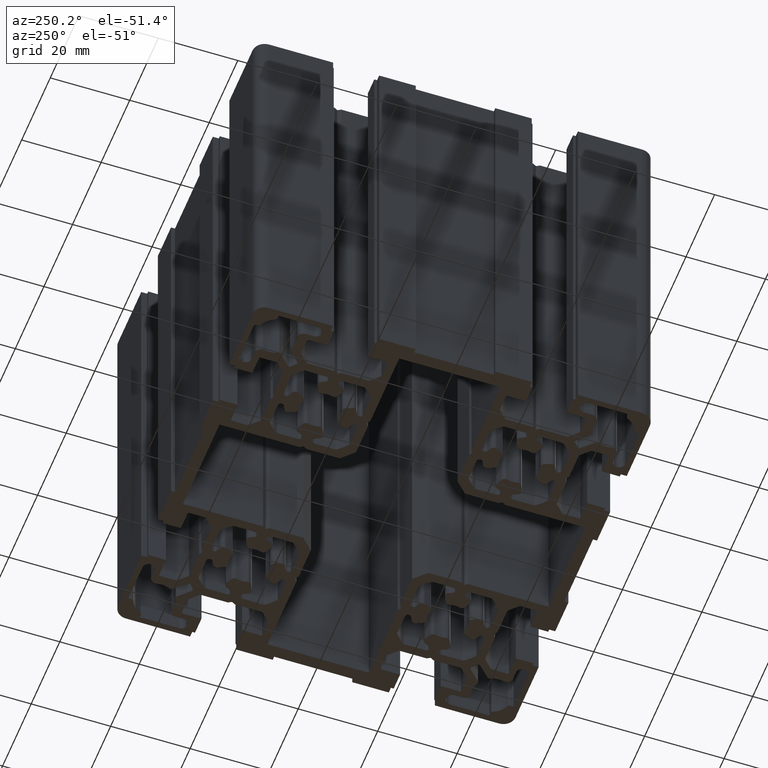
[diagram: clean part render]
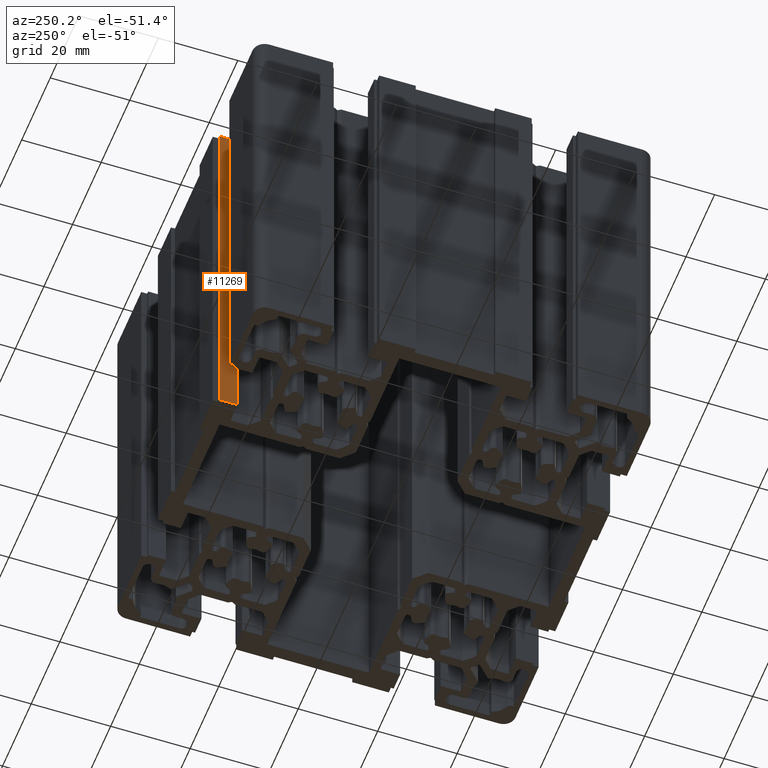
[diagram: same view with one face highlighted and labeled with its STEP entity id]
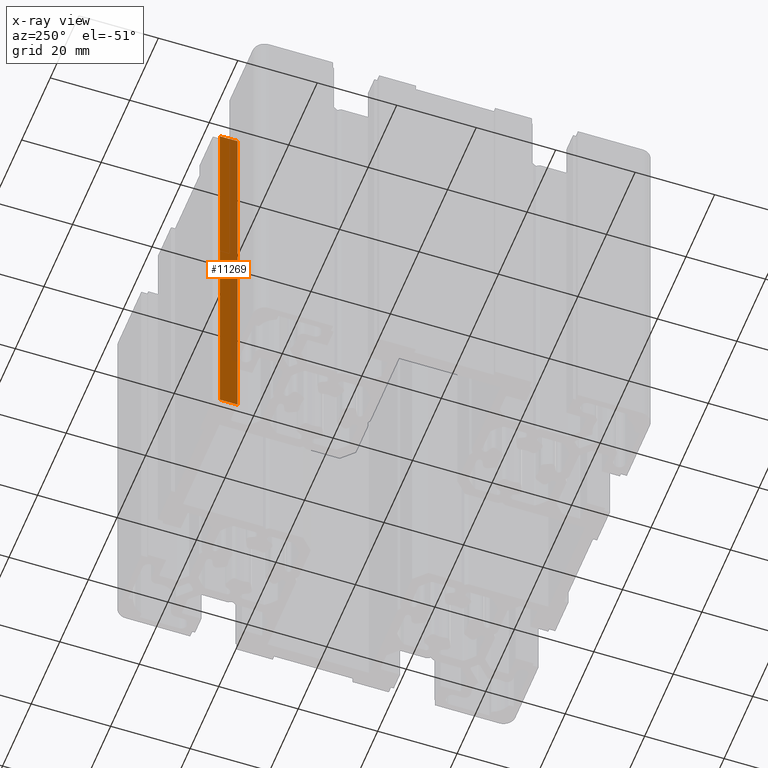
[diagram: x-ray of the same camera — body ghosted, the highlighted face saturated]
A machine part, auxiliary view. The second image highlights one B-rep face of the part: STEP entity #11269.
The next image is the same camera in x-ray: the body ghosted, the highlighted face saturated — about 35% of this face is hidden behind the body in this view.
In plain terms, the highlighted planar face has unit normal (1, -0, 0).
Its self-contained STEP definition (entity closure, byte-faithful):
#8843 = VERTEX_POINT ( 'NONE', #15187 ) ;
#8857 = EDGE_CURVE ( 'NONE', #8843, #8862, #14774, .T. ) ;
#8862 = VERTEX_POINT ( 'NONE', #15263 ) ;
#9218 = EDGE_CURVE ( 'NONE', #9223, #9226, #15914, .T. ) ;
#9223 = VERTEX_POINT ( 'NONE', #15910 ) ;
#9226 = VERTEX_POINT ( 'NONE', #15905 ) ;
#11146 = EDGE_LOOP ( 'NONE', ( #11344, #11346, #11352, #11349 ) ) ;
#11269 = ADVANCED_FACE ( 'NONE', ( #19138 ), #19119, .F. ) ;
#11344 = ORIENTED_EDGE ( 'NONE', *, *, #9218, .T. ) ;
#11346 = ORIENTED_EDGE ( 'NONE', *, *, #11348, .F. ) ;
#11348 = EDGE_CURVE ( 'NONE', #8862, #9226, #19261, .T. ) ;
#11349 = ORIENTED_EDGE ( 'NONE', *, *, #11364, .T. ) ;
#11352 = ORIENTED_EDGE ( 'NONE', *, *, #8857, .F. ) ;
#11364 = EDGE_CURVE ( 'NONE', #8843, #9223, #19305, .T. ) ;
#14765 = DIRECTION ( 'NONE',  ( -6.938893903907222100E-015, -1.000000000000000000, -0.0000000000000000000 ) ) ;
#14774 = LINE ( 'NONE', #14778, #14779 ) ;
#14778 = CARTESIAN_POINT ( 'NONE',  ( -19.89999999999998100, 44.00000000000019200, 100.0000000000000000 ) ) ;
#14779 = VECTOR ( 'NONE', #14765, 1000.000000000000000 ) ;
#15187 = CARTESIAN_POINT ( 'NONE',  ( -19.89999999999994900, 48.50000000000019900, 100.0000000000000000 ) ) ;
#15263 = CARTESIAN_POINT ( 'NONE',  ( -19.89999999999998100, 44.00000000000019200, 100.0000000000000000 ) ) ;
#15905 = CARTESIAN_POINT ( 'NONE',  ( -19.89999999999998100, 44.00000000000019200, 0.0000000000000000000 ) ) ;
#15910 = CARTESIAN_POINT ( 'NONE',  ( -19.89999999999994900, 48.50000000000019900, 0.0000000000000000000 ) ) ;
#15911 = DIRECTION ( 'NONE',  ( -6.938893903907222100E-015, -1.000000000000000000, -0.0000000000000000000 ) ) ;
#15912 = VECTOR ( 'NONE', #15911, 1000.000000000000000 ) ;
#15913 = CARTESIAN_POINT ( 'NONE',  ( -19.89999999999998100, 44.00000000000019200, 0.0000000000000000000 ) ) ;
#15914 = LINE ( 'NONE', #15913, #15912 ) ;
#19113 = CARTESIAN_POINT ( 'NONE',  ( -19.89999999999998100, 44.00000000000019200, 100.0000000000000000 ) ) ;
#19117 = AXIS2_PLACEMENT_3D ( 'NONE', #19113, #19158, #19157 ) ;
#19119 = PLANE ( 'NONE',  #19117 ) ;
#19138 = FACE_OUTER_BOUND ( 'NONE', #11146, .T. ) ;
#19157 = DIRECTION ( 'NONE',  ( 6.938893903907222100E-015, 1.000000000000000000, 0.0000000000000000000 ) ) ;
#19158 = DIRECTION ( 'NONE',  ( 1.000000000000000000, -6.938893903907222100E-015, 0.0000000000000000000 ) ) ;
#19258 = DIRECTION ( 'NONE',  ( -0.0000000000000000000, -0.0000000000000000000, -1.000000000000000000 ) ) ;
#19259 = VECTOR ( 'NONE', #19258, 1000.000000000000000 ) ;
#19260 = CARTESIAN_POINT ( 'NONE',  ( -19.89999999999998100, 44.00000000000019200, 100.0000000000000000 ) ) ;
#19261 = LINE ( 'NONE', #19260, #19259 ) ;
#19300 = DIRECTION ( 'NONE',  ( -0.0000000000000000000, -0.0000000000000000000, -1.000000000000000000 ) ) ;
#19301 = VECTOR ( 'NONE', #19300, 1000.000000000000000 ) ;
#19302 = CARTESIAN_POINT ( 'NONE',  ( -19.89999999999994900, 48.50000000000019900, 100.0000000000000000 ) ) ;
#19305 = LINE ( 'NONE', #19302, #19301 ) ;